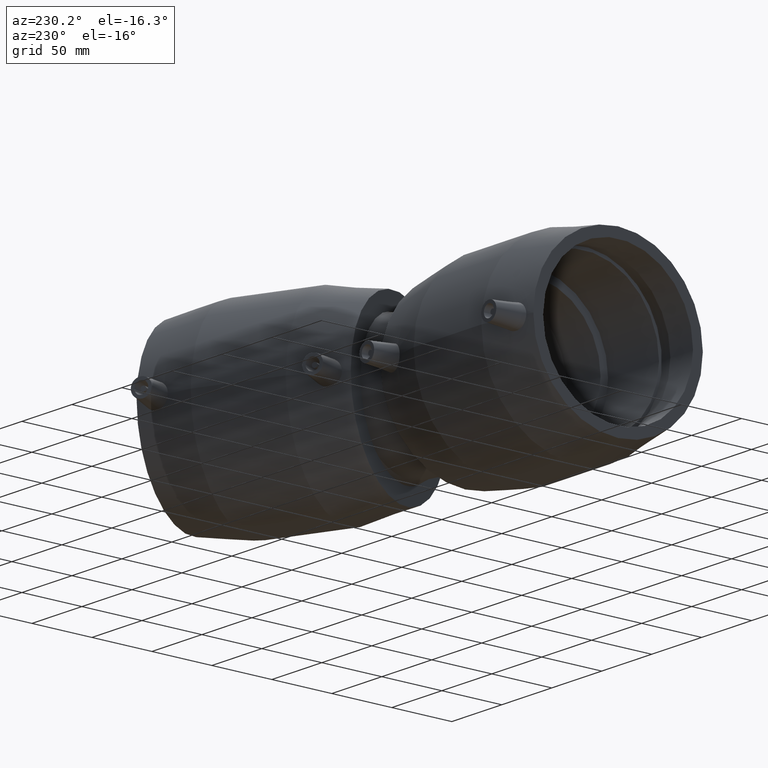
[diagram: clean part render]
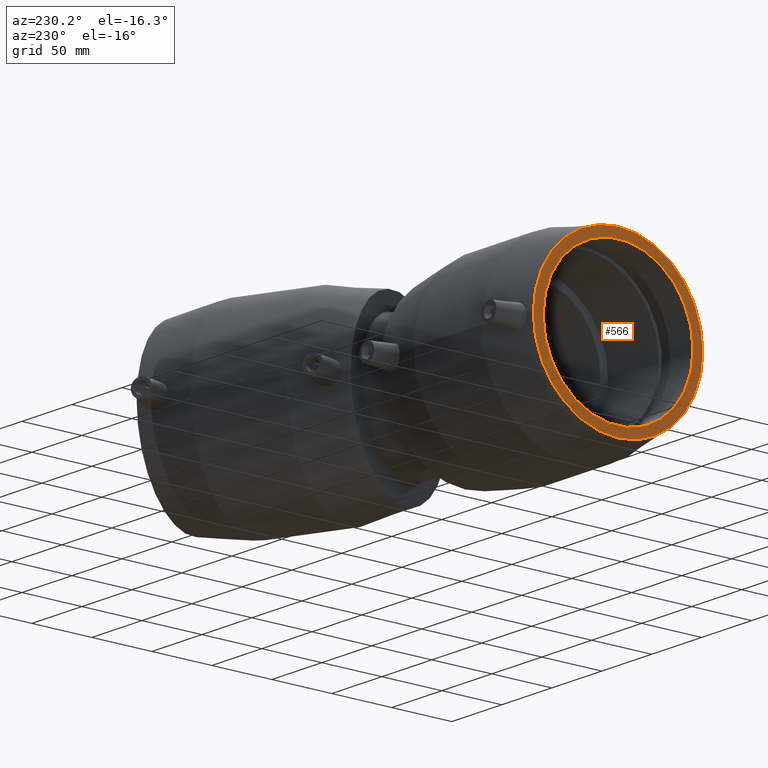
[diagram: same view with one face highlighted and labeled with its STEP entity id]
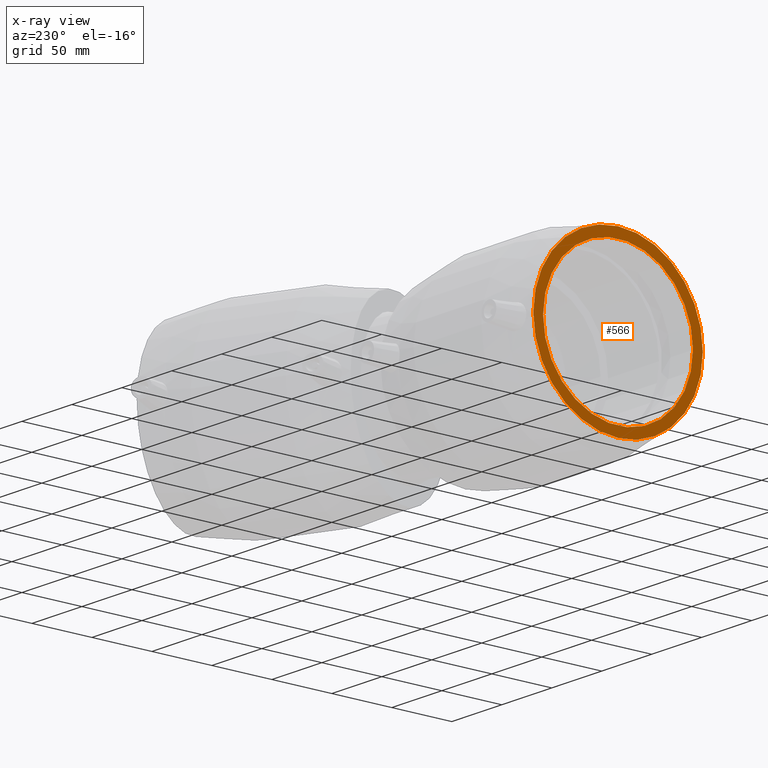
[diagram: x-ray of the same camera — body ghosted, the highlighted face saturated]
A machine part, auxiliary view. The second image highlights one B-rep face of the part: STEP entity #566.
The next image is the same camera in x-ray: the body ghosted, the highlighted face saturated — about 0% of this face is hidden behind the body in this view.
In plain terms, the highlighted planar face has unit normal (-1, -0, 0).
Its self-contained STEP definition (entity closure, byte-faithful):
#34=PLANE('',#644);
#87=FACE_BOUND('',#213,.T.);
#138=FACE_OUTER_BOUND('',#212,.T.);
#212=EDGE_LOOP('',(#485));
#213=EDGE_LOOP('',(#486));
#296=CIRCLE('',#643,62.5);
#297=CIRCLE('',#645,70.65);
#347=VERTEX_POINT('',#1262);
#348=VERTEX_POINT('',#1265);
#402=EDGE_CURVE('',#347,#347,#296,.T.);
#403=EDGE_CURVE('',#348,#348,#297,.T.);
#485=ORIENTED_EDGE('',*,*,#403,.F.);
#486=ORIENTED_EDGE('',*,*,#402,.T.);
#566=ADVANCED_FACE('',(#138,#87),#34,.T.);
#643=AXIS2_PLACEMENT_3D('',#1263,#793,#794);
#644=AXIS2_PLACEMENT_3D('',#1264,#795,#796);
#645=AXIS2_PLACEMENT_3D('',#1266,#797,#798);
#793=DIRECTION('center_axis',(1.,1.83697019872103E-16,0.));
#794=DIRECTION('ref_axis',(0.,0.,-1.));
#795=DIRECTION('center_axis',(-1.,-1.83697019872103E-16,0.));
#796=DIRECTION('ref_axis',(0.,0.,1.));
#797=DIRECTION('center_axis',(1.,1.83697019872103E-16,0.));
#798=DIRECTION('ref_axis',(0.,0.,-1.));
#1262=CARTESIAN_POINT('',(-76.4,62.5,0.));
#1263=CARTESIAN_POINT('Origin',(-76.4,-4.93038065763132E-31,0.));
#1264=CARTESIAN_POINT('Origin',(-76.4,70.65,0.));
#1265=CARTESIAN_POINT('',(-76.4,70.65,0.));
#1266=CARTESIAN_POINT('Origin',(-76.4,1.4791141972894E-30,0.));